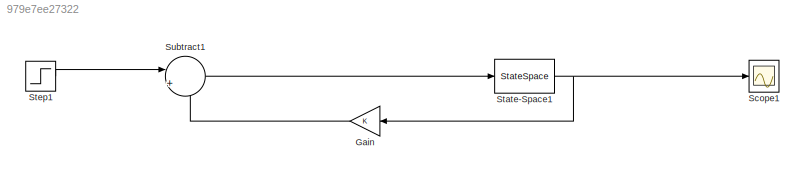
MODEL slx_979e7ee27322
KIND model
CONFIG AbsTol = auto
CONFIG EnableMultiTasking = off
CONFIG FixedStep = auto
CONFIG MaxStep = auto
CONFIG MinStep = auto
CONFIG RelTol = 1e-3
CONFIG SampleTimeConstraint = Unconstrained
CONFIG SolverName = VariableStepAuto
CONFIG StartTime = 0.0
CONFIG StopTime = 50
BLOCK [Gain] Gain
  Gain = K
  Multiplication = Matrix(K*u) (u vector)
BLOCK [Scope] Scope1
  Floating = off
  NumInputPorts = 1
  ScopeSpecificationString = Simulink.scopes.TimeScopeBlockCfg('CurrentConfiguration', extmgr.ConfigurationSet(extmgr.Configuration('Core','General UI',true),extmgr.Configuration('Core','Source UI',true),extmgr.Configuration('Sources','WiredSimulink',true,'DataLoggingVariableName','ScopeData1'),extmgr.Configuration('Visuals','Time Domain',true,'SerializedDisplays',{struct('MinYLimReal','-0.88544','MaxYLimReal','1.24567','YLab...<+1485ch>
BLOCK [StateSpace] State-Space1
  A = A_eval
  B = B_eval
  C = eye(6)
  D = zeros(6,1)
  InitialCondition = [0 0 0 0 0.05 0]
BLOCK [Step] Step1
  After = 0
  Before = 0.05
  SampleTime = 0
BLOCK [Sum] Subtract1
  Inputs = |+-
LINE Gain:1 -> Subtract1:2
NET State-Space1:1 -> Gain:1, Scope1:1
LINE Step1:1 -> Subtract1:1
LINE Subtract1:1 -> State-Space1:1
note: NET lines group one-source signal fan-out (src -> all destinations, sorted); 1:1 wires keep LINE
